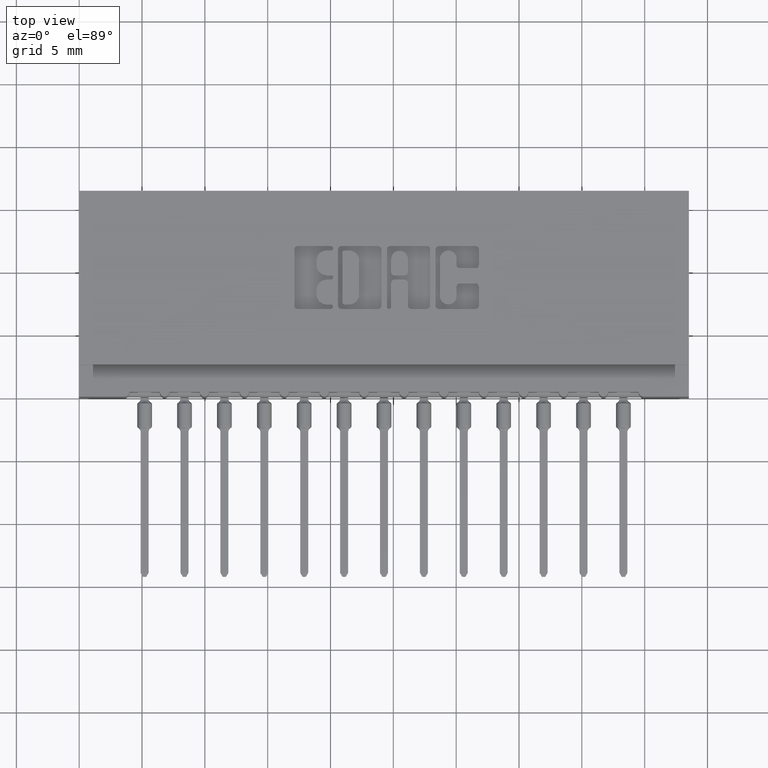
[diagram: clean part render]
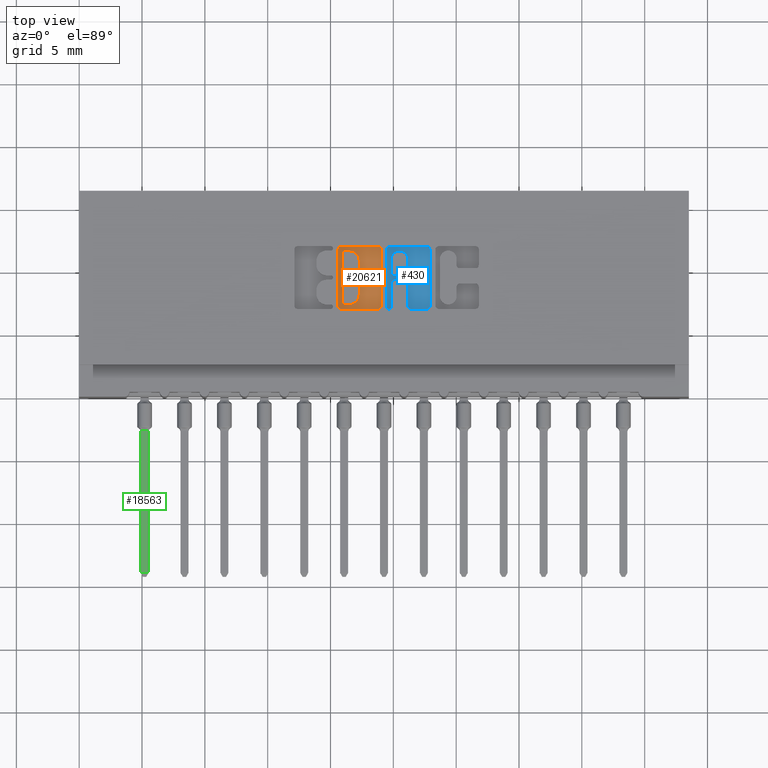
[diagram: same view with three faces highlighted in distinct colors, each labeled with its STEP entity id]
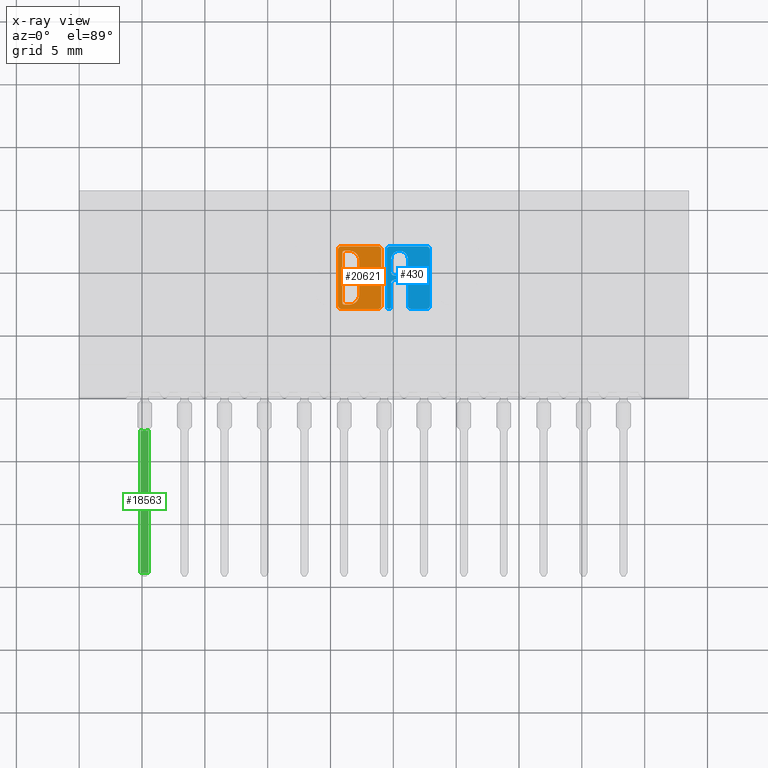
[diagram: x-ray of the same camera — body ghosted, the three highlighted faces saturated]
A machine part, top view with three faces highlighted in distinct colors.
The next image is the same camera in x-ray (body ghosted, the three faces saturated) — at least one of them is partly hidden behind the body in this view.
Their STEP definitions:

[orange] entity #20621 — the highlighted planar face has unit normal (0, 0, 1).
#291 = DIRECTION ( 'NONE',  ( 1.000000000000000000, 0.0000000000000000000, 0.0000000000000000000 ) ) ;
#342 = ORIENTED_EDGE ( 'NONE', *, *, #9348, .F. ) ;
#365 = EDGE_CURVE ( 'NONE', #13720, #22899, #20513, .T. ) ;
#410 = VECTOR ( 'NONE', #16325, 39.37007874015748143 ) ;
#1429 = EDGE_LOOP ( 'NONE', ( #14819, #4169, #12921, #23337, #4683, #3860, #6377, #19997 ) ) ;
#1453 = DIRECTION ( 'NONE',  ( -0.0000000000000000000, 0.0000000000000000000, 1.000000000000000000 ) ) ;
#1592 = VERTEX_POINT ( 'NONE', #4805 ) ;
#1614 = DIRECTION ( 'NONE',  ( 1.000000000000000000, 0.0000000000000000000, 0.0000000000000000000 ) ) ;
#1657 = DIRECTION ( 'NONE',  ( 1.000000000000000000, 0.0000000000000000000, 0.0000000000000000000 ) ) ;
#1773 = CARTESIAN_POINT ( 'NONE',  ( 0.9464112885716690071, 0.4608410318342101575, -0.01000000000000000021 ) ) ;
#2051 = VERTEX_POINT ( 'NONE', #8288 ) ;
#2245 = AXIS2_PLACEMENT_3D ( 'NONE', #17594, #12673, #16026 ) ;
#2300 = EDGE_CURVE ( 'NONE', #5303, #21250, #23454, .T. ) ;
#2346 = CARTESIAN_POINT ( 'NONE',  ( 0.8315679471871664230, 0.4569147637527245509, -0.01000000000000000021 ) ) ;
#2356 = CARTESIAN_POINT ( 'NONE',  ( 0.8246969780444987075, 0.0000000000000000000, -0.01000000000000000021 ) ) ;
#2435 = VECTOR ( 'NONE', #291, 39.37007874015748143 ) ;
#2851 = VECTOR ( 'NONE', #4281, 39.37007874015748143 ) ;
#2951 = EDGE_CURVE ( 'NONE', #2051, #13720, #3004, .T. ) ;
#3004 = CIRCLE ( 'NONE', #14538, 0.009815670203806891800 ) ;
#3378 = AXIS2_PLACEMENT_3D ( 'NONE', #16344, #7069, #1657 ) ;
#3700 = ORIENTED_EDGE ( 'NONE', *, *, #18317, .T. ) ;
#3796 = EDGE_LOOP ( 'NONE', ( #19467, #22634, #5360, #3700, #8097, #15804, #342, #12191 ) ) ;
#3860 = ORIENTED_EDGE ( 'NONE', *, *, #4382, .T. ) ;
#3893 = LINE ( 'NONE', #5688, #2435 ) ;
#4060 = VERTEX_POINT ( 'NONE', #15572 ) ;
#4169 = ORIENTED_EDGE ( 'NONE', *, *, #11628, .T. ) ;
#4281 = DIRECTION ( 'NONE',  ( 1.000000000000000000, 0.0000000000000000000, 0.0000000000000000000 ) ) ;
#4382 = EDGE_CURVE ( 'NONE', #5440, #1592, #20567, .T. ) ;
#4463 = DIRECTION ( 'NONE',  ( -0.0000000000000000000, 0.0000000000000000000, 1.000000000000000000 ) ) ;
#4683 = ORIENTED_EDGE ( 'NONE', *, *, #5372, .T. ) ;
#4805 = CARTESIAN_POINT ( 'NONE',  ( 0.8207707099629759639, 0.2743432979619832568, -0.01000000000000000021 ) ) ;
#5176 = FACE_BOUND ( 'NONE', #3796, .T. ) ;
#5303 = VERTEX_POINT ( 'NONE', #14635 ) ;
#5360 = ORIENTED_EDGE ( 'NONE', *, *, #2300, .F. ) ;
#5372 = EDGE_CURVE ( 'NONE', #18866, #5440, #18132, .T. ) ;
#5440 = VERTEX_POINT ( 'NONE', #11619 ) ;
#5622 = CARTESIAN_POINT ( 'NONE',  ( 0.8772108136348436558, 0.3194953808994845934, -0.01000000000000000021 ) ) ;
#5637 = DIRECTION ( 'NONE',  ( 1.000000000000000000, 0.0000000000000000000, 0.0000000000000000000 ) ) ;
#5688 = CARTESIAN_POINT ( 'NONE',  ( 0.0000000000000000000, 0.2743432979619832568, -0.01000000000000000021 ) ) ;
#5733 = CARTESIAN_POINT ( 'NONE',  ( 0.8207707099630101588, 0.4608410318342101575, -0.01000000000000000021 ) ) ;
#6377 = ORIENTED_EDGE ( 'NONE', *, *, #9827, .T. ) ;
#6695 = CARTESIAN_POINT ( 'NONE',  ( 0.9365956183678960656, 0.4706567020380511002, -0.01000000000000000021 ) ) ;
#6735 = DIRECTION ( 'NONE',  ( 1.000000000000000000, 0.0000000000000000000, 0.0000000000000000000 ) ) ;
#6742 = CARTESIAN_POINT ( 'NONE',  ( 0.8207707099629759639, 0.2841589681657900046, -0.01000000000000000021 ) ) ;
#6930 = EDGE_CURVE ( 'NONE', #4060, #8857, #7383, .T. ) ;
#7043 = CIRCLE ( 'NONE', #22812, 0.006870969142663185293 ) ;
#7069 = DIRECTION ( 'NONE',  ( -0.0000000000000000000, 0.0000000000000000000, 1.000000000000000000 ) ) ;
#7119 = PLANE ( 'NONE',  #2245 ) ;
#7383 = CIRCLE ( 'NONE', #17754, 0.03141014465217017299 ) ;
#7507 = CIRCLE ( 'NONE', #8662, 0.009815670203841039831 ) ;
#8097 = ORIENTED_EDGE ( 'NONE', *, *, #6930, .F. ) ;
#8288 = CARTESIAN_POINT ( 'NONE',  ( 0.9365956183678620928, 0.2743432979619832568, -0.01000000000000000021 ) ) ;
#8318 = CARTESIAN_POINT ( 'NONE',  ( 0.0000000000000000000, 0.2880852362473143025, -0.01000000000000000021 ) ) ;
#8662 = AXIS2_PLACEMENT_3D ( 'NONE', #17581, #4463, #6735 ) ;
#8857 = VERTEX_POINT ( 'NONE', #5622 ) ;
#8920 = DIRECTION ( 'NONE',  ( -0.0000000000000000000, 0.0000000000000000000, 1.000000000000000000 ) ) ;
#9173 = VERTEX_POINT ( 'NONE', #6695 ) ;
#9235 = DIRECTION ( 'NONE',  ( -0.0000000000000000000, 0.0000000000000000000, 1.000000000000000000 ) ) ;
#9326 = LINE ( 'NONE', #20403, #12636 ) ;
#9348 = EDGE_CURVE ( 'NONE', #13297, #15160, #7043, .T. ) ;
#9630 = AXIS2_PLACEMENT_3D ( 'NONE', #18857, #9235, #20321 ) ;
#9827 = EDGE_CURVE ( 'NONE', #1592, #2051, #3893, .T. ) ;
#10021 = AXIS2_PLACEMENT_3D ( 'NONE', #5733, #20570, #13110 ) ;
#10425 = CARTESIAN_POINT ( 'NONE',  ( 0.8109550397591692716, 0.4608410318342101575, -0.01000000000000000021 ) ) ;
#10501 = VECTOR ( 'NONE', #12158, 39.37007874015748143 ) ;
#10718 = EDGE_CURVE ( 'NONE', #13297, #19757, #16927, .T. ) ;
#10760 = EDGE_CURVE ( 'NONE', #19087, #21250, #11519, .T. ) ;
#11137 = CARTESIAN_POINT ( 'NONE',  ( 0.8109550397591692716, 0.0000000000000000000, -0.01000000000000000021 ) ) ;
#11519 = LINE ( 'NONE', #20898, #2851 ) ;
#11619 = CARTESIAN_POINT ( 'NONE',  ( 0.8109550397591692716, 0.2841589681657900046, -0.01000000000000000021 ) ) ;
#11628 = EDGE_CURVE ( 'NONE', #22899, #9173, #7507, .T. ) ;
#11669 = EDGE_CURVE ( 'NONE', #4060, #15160, #17228, .T. ) ;
#11803 = CARTESIAN_POINT ( 'NONE',  ( 0.8772108136348436558, 0.0000000000000000000, -0.01000000000000000021 ) ) ;
#11926 = LINE ( 'NONE', #11803, #10501 ) ;
#12158 = DIRECTION ( 'NONE',  ( 0.0000000000000000000, -1.000000000000000000, 0.0000000000000000000 ) ) ;
#12191 = ORIENTED_EDGE ( 'NONE', *, *, #10718, .T. ) ;
#12305 = CARTESIAN_POINT ( 'NONE',  ( 0.8207707099630101588, 0.4706567020380511002, -0.01000000000000000021 ) ) ;
#12394 = EDGE_CURVE ( 'NONE', #19087, #19757, #14902, .T. ) ;
#12496 = CARTESIAN_POINT ( 'NONE',  ( 0.8315679471871618711, 0.2949562053899775771, -0.01000000000000000021 ) ) ;
#12579 = CARTESIAN_POINT ( 'NONE',  ( 0.8458006689826734759, 0.3194953808994845934, -0.01000000000000000021 ) ) ;
#12636 = VECTOR ( 'NONE', #16899, 39.37007874015748143 ) ;
#12673 = DIRECTION ( 'NONE',  ( -0.0000000000000000000, 0.0000000000000000000, 1.000000000000000000 ) ) ;
#12721 = CIRCLE ( 'NONE', #10021, 0.009815670203840902788 ) ;
#12921 = ORIENTED_EDGE ( 'NONE', *, *, #12938, .T. ) ;
#12938 = EDGE_CURVE ( 'NONE', #9173, #16744, #9326, .T. ) ;
#13110 = DIRECTION ( 'NONE',  ( 1.000000000000000000, 0.0000000000000000000, 0.0000000000000000000 ) ) ;
#13214 = DIRECTION ( 'NONE',  ( 0.0000000000000000000, 1.000000000000000000, -0.0000000000000000000 ) ) ;
#13297 = VERTEX_POINT ( 'NONE', #19655 ) ;
#13569 = CARTESIAN_POINT ( 'NONE',  ( 0.9464112885716690071, 0.2841589681657900046, -0.01000000000000000021 ) ) ;
#13641 = AXIS2_PLACEMENT_3D ( 'NONE', #6742, #1453, #19629 ) ;
#13720 = VERTEX_POINT ( 'NONE', #13569 ) ;
#14037 = VECTOR ( 'NONE', #16762, 39.37007874015748143 ) ;
#14433 = CARTESIAN_POINT ( 'NONE',  ( 0.8458006689826779168, 0.4569147637527245509, -0.01000000000000000021 ) ) ;
#14538 = AXIS2_PLACEMENT_3D ( 'NONE', #16494, #8920, #5637 ) ;
#14615 = CARTESIAN_POINT ( 'NONE',  ( 0.9464112885716690071, 0.0000000000000000000, -0.01000000000000000021 ) ) ;
#14635 = CARTESIAN_POINT ( 'NONE',  ( 0.8772108136348436558, 0.4255046191005526501, -0.01000000000000000021 ) ) ;
#14819 = ORIENTED_EDGE ( 'NONE', *, *, #365, .T. ) ;
#14902 = CIRCLE ( 'NONE', #3378, 0.006870969142667692972 ) ;
#15160 = VERTEX_POINT ( 'NONE', #19126 ) ;
#15416 = DIRECTION ( 'NONE',  ( -1.000000000000000000, 0.0000000000000000000, 0.0000000000000000000 ) ) ;
#15572 = CARTESIAN_POINT ( 'NONE',  ( 0.8458006689826734759, 0.2880852362473143025, -0.01000000000000000021 ) ) ;
#15804 = ORIENTED_EDGE ( 'NONE', *, *, #11669, .T. ) ;
#16026 = DIRECTION ( 'NONE',  ( 1.000000000000000000, 0.0000000000000000000, 0.0000000000000000000 ) ) ;
#16325 = DIRECTION ( 'NONE',  ( 0.0000000000000000000, -1.000000000000000000, 0.0000000000000000000 ) ) ;
#16344 = CARTESIAN_POINT ( 'NONE',  ( 0.8315679471871664230, 0.4500437946100568354, -0.01000000000000000021 ) ) ;
#16414 = DIRECTION ( 'NONE',  ( -0.0000000000000000000, 0.0000000000000000000, 1.000000000000000000 ) ) ;
#16494 = CARTESIAN_POINT ( 'NONE',  ( 0.9365956183678620928, 0.2841589681657900046, -0.01000000000000000021 ) ) ;
#16730 = VECTOR ( 'NONE', #15416, 39.37007874015748143 ) ;
#16744 = VERTEX_POINT ( 'NONE', #12305 ) ;
#16762 = DIRECTION ( 'NONE',  ( 0.0000000000000000000, 1.000000000000000000, -0.0000000000000000000 ) ) ;
#16899 = DIRECTION ( 'NONE',  ( -1.000000000000000000, 0.0000000000000000000, 0.0000000000000000000 ) ) ;
#16927 = LINE ( 'NONE', #2356, #19010 ) ;
#17063 = CARTESIAN_POINT ( 'NONE',  ( 0.8246969780444987075, 0.4500437946100568354, -0.01000000000000000021 ) ) ;
#17228 = LINE ( 'NONE', #8318, #16730 ) ;
#17581 = CARTESIAN_POINT ( 'NONE',  ( 0.9365956183678278979, 0.4608410318342100465, -0.01000000000000000021 ) ) ;
#17594 = CARTESIAN_POINT ( 'NONE',  ( 0.0000000000000000000, 0.0000000000000000000, -0.01000000000000000021 ) ) ;
#17754 = AXIS2_PLACEMENT_3D ( 'NONE', #12579, #16414, #1614 ) ;
#18132 = LINE ( 'NONE', #11137, #410 ) ;
#18317 = EDGE_CURVE ( 'NONE', #5303, #8857, #11926, .T. ) ;
#18663 = EDGE_CURVE ( 'NONE', #16744, #18866, #12721, .T. ) ;
#18857 = CARTESIAN_POINT ( 'NONE',  ( 0.8458006689826716995, 0.4255046191005526501, -0.01000000000000000021 ) ) ;
#18866 = VERTEX_POINT ( 'NONE', #10425 ) ;
#19010 = VECTOR ( 'NONE', #13214, 39.37007874015748143 ) ;
#19087 = VERTEX_POINT ( 'NONE', #2346 ) ;
#19126 = CARTESIAN_POINT ( 'NONE',  ( 0.8315679471871618711, 0.2880852362473143025, -0.01000000000000000021 ) ) ;
#19467 = ORIENTED_EDGE ( 'NONE', *, *, #12394, .F. ) ;
#19629 = DIRECTION ( 'NONE',  ( 1.000000000000000000, 0.0000000000000000000, 0.0000000000000000000 ) ) ;
#19655 = CARTESIAN_POINT ( 'NONE',  ( 0.8246969780444987075, 0.2949562053899775771, -0.01000000000000000021 ) ) ;
#19757 = VERTEX_POINT ( 'NONE', #17063 ) ;
#19827 = DIRECTION ( 'NONE',  ( -0.0000000000000000000, 0.0000000000000000000, 1.000000000000000000 ) ) ;
#19997 = ORIENTED_EDGE ( 'NONE', *, *, #2951, .T. ) ;
#20321 = DIRECTION ( 'NONE',  ( 1.000000000000000000, 0.0000000000000000000, 0.0000000000000000000 ) ) ;
#20403 = CARTESIAN_POINT ( 'NONE',  ( 0.0000000000000000000, 0.4706567020380511002, -0.01000000000000000021 ) ) ;
#20513 = LINE ( 'NONE', #14615, #14037 ) ;
#20567 = CIRCLE ( 'NONE', #13641, 0.009815670203806754757 ) ;
#20570 = DIRECTION ( 'NONE',  ( -0.0000000000000000000, 0.0000000000000000000, 1.000000000000000000 ) ) ;
#20621 = ADVANCED_FACE ( 'NONE', ( #5176, #21446 ), #7119, .T. ) ;
#20658 = DIRECTION ( 'NONE',  ( 1.000000000000000000, 0.0000000000000000000, 0.0000000000000000000 ) ) ;
#20898 = CARTESIAN_POINT ( 'NONE',  ( 0.0000000000000000000, 0.4569147637527245509, -0.01000000000000000021 ) ) ;
#21250 = VERTEX_POINT ( 'NONE', #14433 ) ;
#21446 = FACE_OUTER_BOUND ( 'NONE', #1429, .T. ) ;
#22634 = ORIENTED_EDGE ( 'NONE', *, *, #10760, .T. ) ;
#22812 = AXIS2_PLACEMENT_3D ( 'NONE', #12496, #19827, #20658 ) ;
#22899 = VERTEX_POINT ( 'NONE', #1773 ) ;
#23337 = ORIENTED_EDGE ( 'NONE', *, *, #18663, .T. ) ;
#23454 = CIRCLE ( 'NONE', #9630, 0.03141014465217194934 ) ;

[blue] entity #430 — the highlighted planar face has unit normal (0, 0, 1).
#255 = CARTESIAN_POINT ( 'NONE',  ( 0.9734043816321273912, 0.4608410318342101575, -0.01000000000000000021 ) ) ;
#430 = ADVANCED_FACE ( 'NONE', ( #16013, #16136 ), #4927, .T. ) ;
#633 = ORIENTED_EDGE ( 'NONE', *, *, #11338, .F. ) ;
#752 = ORIENTED_EDGE ( 'NONE', *, *, #14237, .T. ) ;
#779 = CARTESIAN_POINT ( 'NONE',  ( 0.9704596805709869711, 0.2812142671046480302, -0.01000000000000000021 ) ) ;
#861 = VERTEX_POINT ( 'NONE', #11676 ) ;
#893 = VERTEX_POINT ( 'NONE', #957 ) ;
#909 = DIRECTION ( 'NONE',  ( -1.000000000000000000, 0.0000000000000000000, 0.0000000000000000000 ) ) ;
#957 = CARTESIAN_POINT ( 'NONE',  ( 0.9635887114283309129, 0.2812142671046480302, -0.01000000000000000021 ) ) ;
#1012 = DIRECTION ( 'NONE',  ( 1.000000000000000000, 0.0000000000000000000, 0.0000000000000000000 ) ) ;
#1211 = ORIENTED_EDGE ( 'NONE', *, *, #20026, .F. ) ;
#1516 = EDGE_CURVE ( 'NONE', #893, #1561, #19156, .T. ) ;
#1561 = VERTEX_POINT ( 'NONE', #3016 ) ;
#1809 = DIRECTION ( 'NONE',  ( 1.000000000000000000, 0.0000000000000000000, 0.0000000000000000000 ) ) ;
#1853 = CIRCLE ( 'NONE', #11848, 0.009815670203796920609 ) ;
#2372 = AXIS2_PLACEMENT_3D ( 'NONE', #2538, #9889, #13283 ) ;
#2538 = CARTESIAN_POINT ( 'NONE',  ( 1.089229290037011522, 0.4608410318342104350, -0.01000000000000000021 ) ) ;
#2560 = DIRECTION ( 'NONE',  ( -0.0000000000000000000, 0.0000000000000000000, 1.000000000000000000 ) ) ;
#2855 = EDGE_CURVE ( 'NONE', #13201, #5329, #12243, .T. ) ;
#2979 = EDGE_CURVE ( 'NONE', #14410, #22799, #13011, .T. ) ;
#3003 = EDGE_CURVE ( 'NONE', #6869, #3534, #3622, .T. ) ;
#3016 = CARTESIAN_POINT ( 'NONE',  ( 0.9635887114283309129, 0.4608410318342101575, -0.01000000000000000021 ) ) ;
#3161 = VERTEX_POINT ( 'NONE', #6593 ) ;
#3212 = ORIENTED_EDGE ( 'NONE', *, *, #23606, .T. ) ;
#3290 = CARTESIAN_POINT ( 'NONE',  ( 1.029844485303984758, 0.2841589681657878952, -0.01000000000000000021 ) ) ;
#3390 = AXIS2_PLACEMENT_3D ( 'NONE', #6053, #2560, #4810 ) ;
#3534 = VERTEX_POINT ( 'NONE', #7908 ) ;
#3622 = LINE ( 'NONE', #18293, #21464 ) ;
#3738 = EDGE_CURVE ( 'NONE', #12092, #11630, #1853, .T. ) ;
#3767 = CARTESIAN_POINT ( 'NONE',  ( 0.9734043816321273912, 0.4706567020380066912, -0.01000000000000000021 ) ) ;
#3803 = DIRECTION ( 'NONE',  ( 1.000000000000000000, 0.0000000000000000000, 0.0000000000000000000 ) ) ;
#3847 = ORIENTED_EDGE ( 'NONE', *, *, #3911, .F. ) ;
#3899 = LINE ( 'NONE', #13067, #5300 ) ;
#3911 = EDGE_CURVE ( 'NONE', #3985, #19959, #22196, .T. ) ;
#3983 = DIRECTION ( 'NONE',  ( 0.0000000000000000000, -1.000000000000000000, 0.0000000000000000000 ) ) ;
#3985 = VERTEX_POINT ( 'NONE', #4378 ) ;
#4051 = EDGE_CURVE ( 'NONE', #7360, #5329, #17382, .T. ) ;
#4090 = EDGE_CURVE ( 'NONE', #15841, #3161, #8839, .T. ) ;
#4272 = LINE ( 'NONE', #13674, #11867 ) ;
#4378 = CARTESIAN_POINT ( 'NONE',  ( 0.9773306497136469151, 0.3558133606535456295, -0.01000000000000000021 ) ) ;
#4501 = AXIS2_PLACEMENT_3D ( 'NONE', #16247, #6961, #17682 ) ;
#4553 = VECTOR ( 'NONE', #6854, 39.37007874015748143 ) ;
#4652 = AXIS2_PLACEMENT_3D ( 'NONE', #255, #15046, #22263 ) ;
#4666 = CIRCLE ( 'NONE', #20444, 0.009815670203796237128 ) ;
#4810 = DIRECTION ( 'NONE',  ( 1.000000000000000000, 0.0000000000000000000, 0.0000000000000000000 ) ) ;
#4927 = PLANE ( 'NONE',  #22497 ) ;
#5300 = VECTOR ( 'NONE', #13301, 39.37007874015748143 ) ;
#5314 = CARTESIAN_POINT ( 'NONE',  ( 0.9773306497136469151, 0.3891866393464887830, -0.01000000000000000021 ) ) ;
#5329 = VERTEX_POINT ( 'NONE', #21737 ) ;
#5682 = CIRCLE ( 'NONE', #22222, 0.009815670203803340821 ) ;
#5938 = DIRECTION ( 'NONE',  ( 1.000000000000000000, 0.0000000000000000000, 0.0000000000000000000 ) ) ;
#6047 = ORIENTED_EDGE ( 'NONE', *, *, #4090, .T. ) ;
#6053 = CARTESIAN_POINT ( 'NONE',  ( 1.039660155507788009, 0.2841589681657878952, -0.01000000000000000021 ) ) ;
#6323 = ORIENTED_EDGE ( 'NONE', *, *, #3003, .F. ) ;
#6545 = DIRECTION ( 'NONE',  ( 0.0000000000000000000, -1.000000000000000000, 0.0000000000000000000 ) ) ;
#6593 = CARTESIAN_POINT ( 'NONE',  ( 0.9871463199174501657, 0.3793709691426854214, -0.01000000000000000021 ) ) ;
#6699 = ORIENTED_EDGE ( 'NONE', *, *, #16671, .T. ) ;
#6854 = DIRECTION ( 'NONE',  ( -1.000000000000000000, -3.530861605407645268E-14, 0.0000000000000000000 ) ) ;
#6869 = VERTEX_POINT ( 'NONE', #3767 ) ;
#6961 = DIRECTION ( 'NONE',  ( -0.0000000000000000000, 0.0000000000000000000, 1.000000000000000000 ) ) ;
#6981 = LINE ( 'NONE', #9154, #4553 ) ;
#7105 = CARTESIAN_POINT ( 'NONE',  ( 0.0000000000000000000, 0.0000000000000000000, -0.01000000000000000021 ) ) ;
#7360 = VERTEX_POINT ( 'NONE', #11330 ) ;
#7821 = AXIS2_PLACEMENT_3D ( 'NONE', #19322, #21248, #10285 ) ;
#7876 = VERTEX_POINT ( 'NONE', #9844 ) ;
#7908 = CARTESIAN_POINT ( 'NONE',  ( 1.089229290037013964, 0.4706567020380066912, -0.01000000000000000021 ) ) ;
#8261 = CARTESIAN_POINT ( 'NONE',  ( 1.020028815100185726, 0.3793709691426855879, -0.01000000000000000021 ) ) ;
#8263 = AXIS2_PLACEMENT_3D ( 'NONE', #17493, #15803, #1012 ) ;
#8559 = CARTESIAN_POINT ( 'NONE',  ( 0.9635887114283309129, 0.0000000000000000000, -0.01000000000000000021 ) ) ;
#8799 = DIRECTION ( 'NONE',  ( 1.000000000000000000, 0.0000000000000000000, 0.0000000000000000000 ) ) ;
#8839 = LINE ( 'NONE', #19541, #19198 ) ;
#8929 = ORIENTED_EDGE ( 'NONE', *, *, #4051, .F. ) ;
#8962 = DIRECTION ( 'NONE',  ( -1.000000000000000000, -4.153954829891640784E-15, 0.0000000000000000000 ) ) ;
#9064 = VERTEX_POINT ( 'NONE', #9613 ) ;
#9079 = CARTESIAN_POINT ( 'NONE',  ( 1.099044960240806779, 0.4608410318342010537, -0.01000000000000000021 ) ) ;
#9104 = CARTESIAN_POINT ( 'NONE',  ( 1.020028815100187725, 0.3558133606535528459, -0.01000000000000000021 ) ) ;
#9151 = AXIS2_PLACEMENT_3D ( 'NONE', #779, #15568, #22904 ) ;
#9154 = CARTESIAN_POINT ( 'NONE',  ( -1.290985506876496686E-14, 0.3656290308573138526, -0.01000000000000000021 ) ) ;
#9164 = ORIENTED_EDGE ( 'NONE', *, *, #2855, .T. ) ;
#9214 = DIRECTION ( 'NONE',  ( 0.0000000000000000000, -1.000000000000000000, 0.0000000000000000000 ) ) ;
#9355 = CARTESIAN_POINT ( 'NONE',  ( 0.9773306497136469151, 0.4301670624473479809, -0.01000000000000000021 ) ) ;
#9608 = EDGE_CURVE ( 'NONE', #7876, #22799, #13981, .T. ) ;
#9613 = CARTESIAN_POINT ( 'NONE',  ( 1.099044960240806779, 0.2841589681657809008, -0.01000000000000000021 ) ) ;
#9844 = CARTESIAN_POINT ( 'NONE',  ( 1.029844485303982093, 0.4301670498449322588, -0.01000000000000000021 ) ) ;
#9889 = DIRECTION ( 'NONE',  ( -0.0000000000000000000, 0.0000000000000000000, 1.000000000000000000 ) ) ;
#10285 = DIRECTION ( 'NONE',  ( 1.000000000000000000, 0.0000000000000000000, 0.0000000000000000000 ) ) ;
#10594 = DIRECTION ( 'NONE',  ( 0.0000000000000000000, 1.000000000000000000, -0.0000000000000000000 ) ) ;
#10675 = CARTESIAN_POINT ( 'NONE',  ( 1.029844485303982093, 0.3891866393464820106, -0.01000000000000000021 ) ) ;
#10712 = DIRECTION ( 'NONE',  ( -0.0000000000000000000, 0.0000000000000000000, 1.000000000000000000 ) ) ;
#11330 = CARTESIAN_POINT ( 'NONE',  ( 1.089229290037010411, 0.2743432979619847001, -0.01000000000000000021 ) ) ;
#11336 = CARTESIAN_POINT ( 'NONE',  ( 1.029844485303982093, 0.0000000000000000000, -0.01000000000000000021 ) ) ;
#11338 = EDGE_CURVE ( 'NONE', #15841, #12370, #19026, .T. ) ;
#11378 = ORIENTED_EDGE ( 'NONE', *, *, #21986, .T. ) ;
#11387 = VECTOR ( 'NONE', #9214, 39.37007874015748143 ) ;
#11630 = VERTEX_POINT ( 'NONE', #15543 ) ;
#11676 = CARTESIAN_POINT ( 'NONE',  ( 0.9871463199174501657, 0.3656290308573487136, -0.01000000000000000021 ) ) ;
#11848 = AXIS2_PLACEMENT_3D ( 'NONE', #9104, #12357, #23543 ) ;
#11867 = VECTOR ( 'NONE', #6545, 39.37007874015748143 ) ;
#12092 = VERTEX_POINT ( 'NONE', #14797 ) ;
#12157 = ORIENTED_EDGE ( 'NONE', *, *, #20156, .F. ) ;
#12243 = CIRCLE ( 'NONE', #3390, 0.009815670203803340821 ) ;
#12296 = DIRECTION ( 'NONE',  ( 0.0000000000000000000, 1.000000000000000000, -0.0000000000000000000 ) ) ;
#12357 = DIRECTION ( 'NONE',  ( -0.0000000000000000000, 0.0000000000000000000, 1.000000000000000000 ) ) ;
#12370 = VERTEX_POINT ( 'NONE', #10675 ) ;
#12685 = ORIENTED_EDGE ( 'NONE', *, *, #2979, .T. ) ;
#12894 = CARTESIAN_POINT ( 'NONE',  ( 0.9773306497136469151, 0.0000000000000000000, -0.01000000000000000021 ) ) ;
#12962 = CARTESIAN_POINT ( 'NONE',  ( 0.9871463199174501657, 0.3891866393464887830, -0.01000000000000000021 ) ) ;
#12983 = EDGE_CURVE ( 'NONE', #13201, #12092, #3899, .T. ) ;
#13011 = LINE ( 'NONE', #12894, #19536 ) ;
#13067 = CARTESIAN_POINT ( 'NONE',  ( 1.029844485303984758, 0.0000000000000000000, -0.01000000000000000021 ) ) ;
#13074 = CARTESIAN_POINT ( 'NONE',  ( 0.9773306497136469151, 0.0000000000000000000, -0.01000000000000000021 ) ) ;
#13201 = VERTEX_POINT ( 'NONE', #3290 ) ;
#13283 = DIRECTION ( 'NONE',  ( 1.000000000000000000, 0.0000000000000000000, 0.0000000000000000000 ) ) ;
#13301 = DIRECTION ( 'NONE',  ( 0.0000000000000000000, 1.000000000000000000, -0.0000000000000000000 ) ) ;
#13674 = CARTESIAN_POINT ( 'NONE',  ( 1.099044960240806779, 0.0000000000000000000, -0.01000000000000000021 ) ) ;
#13932 = EDGE_LOOP ( 'NONE', ( #6323, #3212, #18610, #752, #3847, #14523, #19349, #20772, #19527, #9164, #8929, #14542, #12157, #6699 ) ) ;
#13960 = EDGE_LOOP ( 'NONE', ( #23089, #11378, #633, #6047, #1211, #12685 ) ) ;
#13981 = CIRCLE ( 'NONE', #7821, 0.02625691779516779734 ) ;
#14237 = EDGE_CURVE ( 'NONE', #893, #19959, #15690, .T. ) ;
#14410 = VERTEX_POINT ( 'NONE', #5314 ) ;
#14523 = ORIENTED_EDGE ( 'NONE', *, *, #21086, .F. ) ;
#14531 = VECTOR ( 'NONE', #3983, 39.37007874015748143 ) ;
#14542 = ORIENTED_EDGE ( 'NONE', *, *, #16199, .T. ) ;
#14797 = CARTESIAN_POINT ( 'NONE',  ( 1.029844485303984758, 0.3558133606535435201, -0.01000000000000000021 ) ) ;
#14839 = EDGE_CURVE ( 'NONE', #11630, #861, #6981, .T. ) ;
#14971 = VECTOR ( 'NONE', #909, 39.37007874015748143 ) ;
#15014 = VECTOR ( 'NONE', #12296, 39.37007874015748143 ) ;
#15046 = DIRECTION ( 'NONE',  ( -0.0000000000000000000, 0.0000000000000000000, 1.000000000000000000 ) ) ;
#15543 = CARTESIAN_POINT ( 'NONE',  ( 1.020028815100188169, 0.3656290308573498238, -0.01000000000000000021 ) ) ;
#15568 = DIRECTION ( 'NONE',  ( -0.0000000000000000000, 0.0000000000000000000, 1.000000000000000000 ) ) ;
#15690 = CIRCLE ( 'NONE', #9151, 0.006870969142657995000 ) ;
#15705 = VERTEX_POINT ( 'NONE', #9079 ) ;
#15803 = DIRECTION ( 'NONE',  ( -0.0000000000000000000, 0.0000000000000000000, 1.000000000000000000 ) ) ;
#15841 = VERTEX_POINT ( 'NONE', #8261 ) ;
#16013 = FACE_BOUND ( 'NONE', #13960, .T. ) ;
#16136 = FACE_OUTER_BOUND ( 'NONE', #13932, .T. ) ;
#16199 = EDGE_CURVE ( 'NONE', #7360, #9064, #4666, .T. ) ;
#16247 = CARTESIAN_POINT ( 'NONE',  ( 0.9871463199174501657, 0.3558133606535456295, -0.01000000000000000021 ) ) ;
#16671 = EDGE_CURVE ( 'NONE', #15705, #3534, #23126, .T. ) ;
#16778 = DIRECTION ( 'NONE',  ( -0.0000000000000000000, 0.0000000000000000000, 1.000000000000000000 ) ) ;
#17382 = LINE ( 'NONE', #20988, #14971 ) ;
#17493 = CARTESIAN_POINT ( 'NONE',  ( 1.020028815100185726, 0.3891866393464820106, -0.01000000000000000021 ) ) ;
#17682 = DIRECTION ( 'NONE',  ( 1.000000000000000000, 0.0000000000000000000, 0.0000000000000000000 ) ) ;
#18293 = CARTESIAN_POINT ( 'NONE',  ( 0.0000000000000000000, 0.4706567020380066912, -0.01000000000000000021 ) ) ;
#18362 = CARTESIAN_POINT ( 'NONE',  ( 0.9773306497136469151, 0.2812142671046480302, -0.01000000000000000021 ) ) ;
#18554 = LINE ( 'NONE', #11336, #14531 ) ;
#18610 = ORIENTED_EDGE ( 'NONE', *, *, #1516, .F. ) ;
#19026 = CIRCLE ( 'NONE', #8263, 0.009815670203796374171 ) ;
#19156 = LINE ( 'NONE', #8559, #15014 ) ;
#19198 = VECTOR ( 'NONE', #8962, 39.37007874015748143 ) ;
#19322 = CARTESIAN_POINT ( 'NONE',  ( 1.003587567508811729, 0.4301670498449322588, -0.01000000000000000021 ) ) ;
#19349 = ORIENTED_EDGE ( 'NONE', *, *, #14839, .F. ) ;
#19527 = ORIENTED_EDGE ( 'NONE', *, *, #12983, .F. ) ;
#19536 = VECTOR ( 'NONE', #10594, 39.37007874015748143 ) ;
#19541 = CARTESIAN_POINT ( 'NONE',  ( -1.575889869590913575E-15, 0.3793709691426813135, -0.01000000000000000021 ) ) ;
#19959 = VERTEX_POINT ( 'NONE', #18362 ) ;
#20026 = EDGE_CURVE ( 'NONE', #14410, #3161, #5682, .T. ) ;
#20156 = EDGE_CURVE ( 'NONE', #15705, #9064, #4272, .T. ) ;
#20305 = DIRECTION ( 'NONE',  ( -0.0000000000000000000, 0.0000000000000000000, 1.000000000000000000 ) ) ;
#20444 = AXIS2_PLACEMENT_3D ( 'NONE', #20641, #16778, #5938 ) ;
#20641 = CARTESIAN_POINT ( 'NONE',  ( 1.089229290037010411, 0.2841589681657809008, -0.01000000000000000021 ) ) ;
#20772 = ORIENTED_EDGE ( 'NONE', *, *, #3738, .F. ) ;
#20988 = CARTESIAN_POINT ( 'NONE',  ( 0.0000000000000000000, 0.2743432979619847001, -0.01000000000000000021 ) ) ;
#21086 = EDGE_CURVE ( 'NONE', #861, #3985, #23331, .T. ) ;
#21248 = DIRECTION ( 'NONE',  ( -0.0000000000000000000, 0.0000000000000000000, 1.000000000000000000 ) ) ;
#21464 = VECTOR ( 'NONE', #1809, 39.37007874015748143 ) ;
#21737 = CARTESIAN_POINT ( 'NONE',  ( 1.039660155507785566, 0.2743432979619847001, -0.01000000000000000021 ) ) ;
#21986 = EDGE_CURVE ( 'NONE', #7876, #12370, #18554, .T. ) ;
#22196 = LINE ( 'NONE', #13074, #11387 ) ;
#22222 = AXIS2_PLACEMENT_3D ( 'NONE', #12962, #20305, #3803 ) ;
#22263 = DIRECTION ( 'NONE',  ( 1.000000000000000000, 0.0000000000000000000, 0.0000000000000000000 ) ) ;
#22497 = AXIS2_PLACEMENT_3D ( 'NONE', #7105, #10712, #8799 ) ;
#22799 = VERTEX_POINT ( 'NONE', #9355 ) ;
#22904 = DIRECTION ( 'NONE',  ( 1.000000000000000000, 0.0000000000000000000, 0.0000000000000000000 ) ) ;
#23089 = ORIENTED_EDGE ( 'NONE', *, *, #9608, .F. ) ;
#23116 = CIRCLE ( 'NONE', #4652, 0.009815670203796511215 ) ;
#23126 = CIRCLE ( 'NONE', #2372, 0.009815670203795690690 ) ;
#23331 = CIRCLE ( 'NONE', #4501, 0.009815670203803203778 ) ;
#23543 = DIRECTION ( 'NONE',  ( 1.000000000000000000, 0.0000000000000000000, 0.0000000000000000000 ) ) ;
#23606 = EDGE_CURVE ( 'NONE', #6869, #1561, #23116, .T. ) ;

[green] entity #18563 — the highlighted planar face has unit normal (0, 0, -1).
#498 = ORIENTED_EDGE ( 'NONE', *, *, #23087, .T. ) ;
#825 = VERTEX_POINT ( 'NONE', #9972 ) ;
#1790 = FACE_OUTER_BOUND ( 'NONE', #8925, .T. ) ;
#2130 = LINE ( 'NONE', #19621, #9812 ) ;
#2550 = CARTESIAN_POINT ( 'NONE',  ( -0.01250830480091513590, 0.01250000000000024182, 0.08791071163542073241 ) ) ;
#3215 = ORIENTED_EDGE ( 'NONE', *, *, #18092, .T. ) ;
#3385 = VERTEX_POINT ( 'NONE', #5008 ) ;
#3828 = PLANE ( 'NONE',  #6543 ) ;
#3877 = ORIENTED_EDGE ( 'NONE', *, *, #18984, .T. ) ;
#3878 = DIRECTION ( 'NONE',  ( -7.488809736564221589E-15, 3.842490622808864888E-22, -1.000000000000000000 ) ) ;
#4468 = CARTESIAN_POINT ( 'NONE',  ( -0.001499999999996692130, 0.01250000000000290636, 0.08938749456993817788 ) ) ;
#5008 = CARTESIAN_POINT ( 'NONE',  ( 0.01250000000000348575, 0.01250000000000003712, 0.08836055168419881811 ) ) ;
#5188 = CARTESIAN_POINT ( 'NONE',  ( 0.008922339816386735609, 0.01250000000000004406, 0.08902420542786233792 ) ) ;
#5254 = B_SPLINE_CURVE_WITH_KNOTS ( 'NONE', 3,
 ( #4468, #20116, #21433, #8802 ),
 .UNSPECIFIED., .F., .F.,
 ( 4, 4 ),
 ( 0.0000000000000000000, 0.0002821157609885972155 ),
 .UNSPECIFIED. ) ;
#5371 = ORIENTED_EDGE ( 'NONE', *, *, #21801, .T. ) ;
#5594 = B_SPLINE_CURVE_WITH_KNOTS ( 'NONE', 3,
 ( #21810, #5188, #19890, #8947 ),
 .UNSPECIFIED., .F., .F.,
 ( 4, 4 ),
 ( -2.177742611627300596E-07, 0.0002818979867274306944 ),
 .UNSPECIFIED. ) ;
#6105 = DIRECTION ( 'NONE',  ( 1.806837294907682453E-15, -1.000000000000000000, -3.842490758119472301E-22 ) ) ;
#6543 = AXIS2_PLACEMENT_3D ( 'NONE', #16708, #6105, #11419 ) ;
#6946 = LINE ( 'NONE', #14189, #11093 ) ;
#7334 = VERTEX_POINT ( 'NONE', #15174 ) ;
#7430 = CARTESIAN_POINT ( 'NONE',  ( -0.001499999999996692130, 0.01250000000000290636, 0.08938749456993817788 ) ) ;
#7973 = CARTESIAN_POINT ( 'NONE',  ( -0.01249999999999720258, 0.01250000000000024182, 0.08836055168419625072 ) ) ;
#8096 = CARTESIAN_POINT ( 'NONE',  ( -0.01249999999999720258, 0.01250000000000024182, 0.08821057945002509781 ) ) ;
#8708 = CARTESIAN_POINT ( 'NONE',  ( 0.001500000000003248518, 0.01250000000000249523, 0.08938749456993817788 ) ) ;
#8802 = CARTESIAN_POINT ( 'NONE',  ( -0.01250830480091513590, 0.01250000000000024182, 0.08791071163542073241 ) ) ;
#8925 = EDGE_LOOP ( 'NONE', ( #9020, #3215, #23303, #3877, #498, #15688, #12547, #5371 ) ) ;
#8947 = CARTESIAN_POINT ( 'NONE',  ( 0.001500000000003248518, 0.01250000000000249523, 0.08938749456993817788 ) ) ;
#9020 = ORIENTED_EDGE ( 'NONE', *, *, #16619, .F. ) ;
#9111 = CARTESIAN_POINT ( 'NONE',  ( 0.01250000000000348575, 0.01250000000000003712, 0.08821057945002765133 ) ) ;
#9812 = VECTOR ( 'NONE', #11035, 39.37007874015748143 ) ;
#9972 = CARTESIAN_POINT ( 'NONE',  ( 0.01250000000000621794, 0.01250000000000010651, 0.5332500000000135465 ) ) ;
#10253 = CARTESIAN_POINT ( 'NONE',  ( -0.01250277416173084001, 0.01250000000000024182, 0.08806058185612021527 ) ) ;
#11035 = DIRECTION ( 'NONE',  ( -1.000000000000000000, 1.806837294907708879E-15, -7.488809736563910778E-15 ) ) ;
#11093 = VECTOR ( 'NONE', #16350, 39.37007874015748143 ) ;
#11098 = VERTEX_POINT ( 'NONE', #11489 ) ;
#11419 = DIRECTION ( 'NONE',  ( -7.488809736564221589E-15, 3.842490622808864888E-22, -1.000000000000000000 ) ) ;
#11489 = CARTESIAN_POINT ( 'NONE',  ( -0.01249999999999720258, 0.01250000000000024182, 0.08836055168419625072 ) ) ;
#11588 = LINE ( 'NONE', #18926, #22373 ) ;
#11765 = EDGE_CURVE ( 'NONE', #14383, #11779, #2130, .T. ) ;
#11779 = VERTEX_POINT ( 'NONE', #7430 ) ;
#11829 = B_SPLINE_CURVE_WITH_KNOTS ( 'NONE', 3,
 ( #16333, #9111, #23668, #20063 ),
 .UNSPECIFIED., .F., .F.,
 ( 4, 4 ),
 ( 0.0000000000000000000, 1.142788424384338987E-05 ),
 .UNSPECIFIED. ) ;
#12547 = ORIENTED_EDGE ( 'NONE', *, *, #14697, .T. ) ;
#12783 = VERTEX_POINT ( 'NONE', #20048 ) ;
#12789 = DIRECTION ( 'NONE',  ( 1.000000000000000000, -1.806837294907708879E-15, 7.488809736563910778E-15 ) ) ;
#13005 = CARTESIAN_POINT ( 'NONE',  ( 0.01250830480092141907, 0.01250000000000003712, 0.08791071163542332756 ) ) ;
#14189 = CARTESIAN_POINT ( 'NONE',  ( 0.01250000000000403219, 0.01249999999999658849, 0.1332500000000025886 ) ) ;
#14383 = VERTEX_POINT ( 'NONE', #8708 ) ;
#14697 = EDGE_CURVE ( 'NONE', #11779, #7334, #5254, .T. ) ;
#14700 = CARTESIAN_POINT ( 'NONE',  ( 0.01250000000000621794, 0.01250000000000010651, 0.5332500000000135465 ) ) ;
#15112 = VECTOR ( 'NONE', #12789, 39.37007874015748143 ) ;
#15174 = CARTESIAN_POINT ( 'NONE',  ( -0.01250830480091513590, 0.01250000000000024182, 0.08791071163542073241 ) ) ;
#15209 = EDGE_CURVE ( 'NONE', #825, #3385, #6946, .T. ) ;
#15688 = ORIENTED_EDGE ( 'NONE', *, *, #11765, .T. ) ;
#16333 = CARTESIAN_POINT ( 'NONE',  ( 0.01250000000000348575, 0.01250000000000003712, 0.08836055168419881811 ) ) ;
#16350 = DIRECTION ( 'NONE',  ( -7.488809736564221589E-15, 3.842490622808864888E-22, -1.000000000000000000 ) ) ;
#16619 = EDGE_CURVE ( 'NONE', #12783, #11098, #11588, .T. ) ;
#16708 = CARTESIAN_POINT ( 'NONE',  ( -0.01249999999999638380, 0.01250000000000003712, 0.1332500000000000073 ) ) ;
#18092 = EDGE_CURVE ( 'NONE', #12783, #825, #19999, .T. ) ;
#18563 = ADVANCED_FACE ( 'NONE', ( #1790 ), #3828, .F. ) ;
#18926 = CARTESIAN_POINT ( 'NONE',  ( -0.01249999999999638380, 0.01250000000000003712, 0.1332500000000000073 ) ) ;
#18984 = EDGE_CURVE ( 'NONE', #3385, #23593, #11829, .T. ) ;
#19621 = CARTESIAN_POINT ( 'NONE',  ( -0.01249999999999720258, 0.01250000000000010651, 0.08938749456993817788 ) ) ;
#19890 = CARTESIAN_POINT ( 'NONE',  ( 0.005235407192710820473, 0.01250000000000249002, 0.08938749456993824727 ) ) ;
#19999 = LINE ( 'NONE', #14700, #15112 ) ;
#20048 = CARTESIAN_POINT ( 'NONE',  ( -0.01249999999999556327, 0.01249999999999494918, 0.5332500000000069962 ) ) ;
#20063 = CARTESIAN_POINT ( 'NONE',  ( 0.01250830480092141907, 0.01250000000000003712, 0.08791071163542332756 ) ) ;
#20116 = CARTESIAN_POINT ( 'NONE',  ( -0.005235407192704582408, 0.01250000000000291156, 0.08938749456993815012 ) ) ;
#21433 = CARTESIAN_POINT ( 'NONE',  ( -0.008922339816377529431, 0.01250000000000023662, 0.08902420542786070035 ) ) ;
#21801 = EDGE_CURVE ( 'NONE', #7334, #11098, #23402, .T. ) ;
#21810 = CARTESIAN_POINT ( 'NONE',  ( 0.01250830480092141907, 0.01250000000000003712, 0.08791071163542332756 ) ) ;
#22373 = VECTOR ( 'NONE', #3878, 39.37007874015748143 ) ;
#23087 = EDGE_CURVE ( 'NONE', #23593, #14383, #5594, .T. ) ;
#23303 = ORIENTED_EDGE ( 'NONE', *, *, #15209, .T. ) ;
#23402 = B_SPLINE_CURVE_WITH_KNOTS ( 'NONE', 3,
 ( #2550, #10253, #8096, #7973 ),
 .UNSPECIFIED., .F., .F.,
 ( 4, 4 ),
 ( 0.0000000000000000000, 1.142788424384376764E-05 ),
 .UNSPECIFIED. ) ;
#23593 = VERTEX_POINT ( 'NONE', #13005 ) ;
#23668 = CARTESIAN_POINT ( 'NONE',  ( 0.01250277416173712838, 0.01250000000000003712, 0.08806058185612278266 ) ) ;